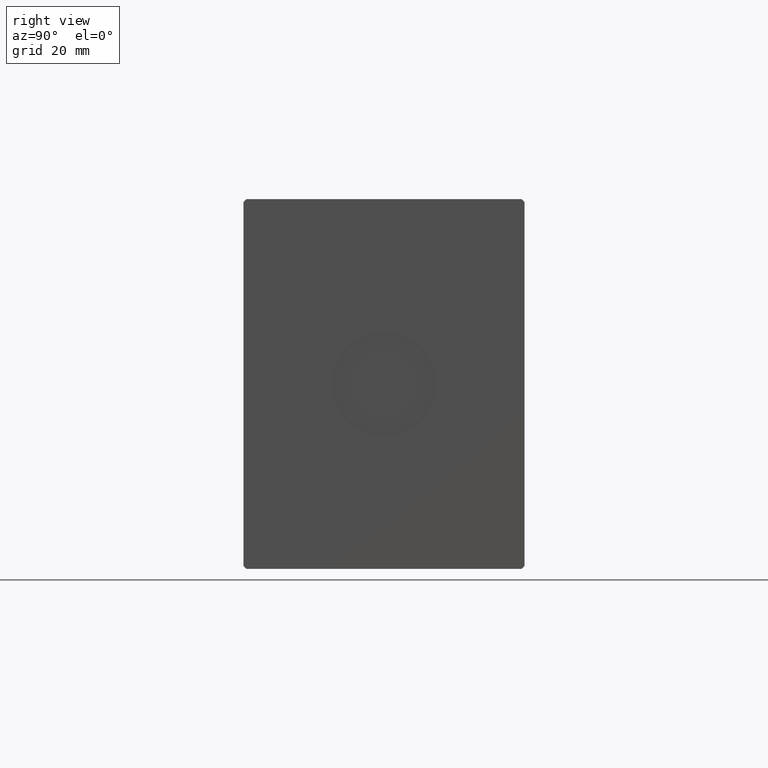
[diagram: clean part render]
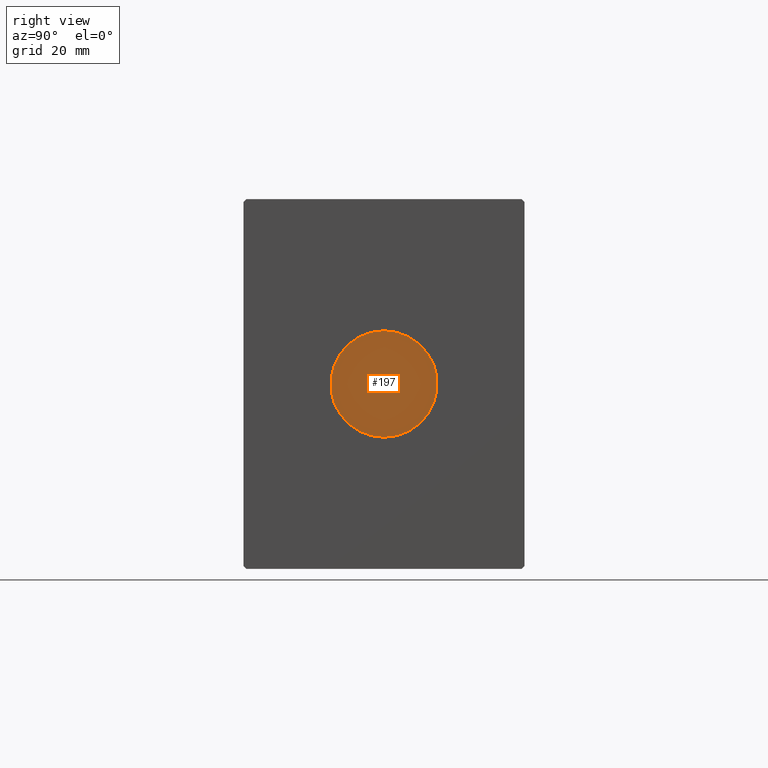
[diagram: same view with one face highlighted and labeled with its STEP entity id]
A machine part, right view. The second image highlights one B-rep face of the part: STEP entity #197.
In plain terms, the highlighted planar face has unit normal (1, 0, 0).
Its self-contained STEP definition (entity closure, byte-faithful):
#197 = ADVANCED_FACE ( 'NONE', ( #30117 ), #29700, .T. ) ;
#373 = CARTESIAN_POINT ( 'NONE',  ( 190.8000000000000114, 0.000000000000000000, 0.000000000000000000 ) ) ;
#1000 = DIRECTION ( 'NONE',  ( 0.000000000000000000, 0.000000000000000000, -1.000000000000000000 ) ) ;
#1393 = CARTESIAN_POINT ( 'NONE',  ( 190.8000000000000114, 0.000000000000000000, -18.00000000000000000 ) ) ;
#4848 = DIRECTION ( 'NONE',  ( 1.000000000000000000, 0.000000000000000000, 0.000000000000000000 ) ) ;
#7205 = EDGE_LOOP ( 'NONE', ( #26087, #31900 ) ) ;
#8422 = CIRCLE ( 'NONE', #21326, 18.00000000000000000 ) ;
#8554 = AXIS2_PLACEMENT_3D ( 'NONE', #373, #10359, #1000 ) ;
#10359 = DIRECTION ( 'NONE',  ( 1.000000000000000000, 0.000000000000000000, 0.000000000000000000 ) ) ;
#11366 = DIRECTION ( 'NONE',  ( 1.000000000000000000, 0.000000000000000000, 0.000000000000000000 ) ) ;
#17505 = EDGE_CURVE ( 'NONE', #36539, #31013, #31102, .T. ) ;
#21326 = AXIS2_PLACEMENT_3D ( 'NONE', #24405, #4848, #33965 ) ;
#23652 = AXIS2_PLACEMENT_3D ( 'NONE', #24121, #11366, #27503 ) ;
#24121 = CARTESIAN_POINT ( 'NONE',  ( 190.8000000000000114, 0.000000000000000000, 0.000000000000000000 ) ) ;
#24405 = CARTESIAN_POINT ( 'NONE',  ( 190.8000000000000114, 0.000000000000000000, 0.000000000000000000 ) ) ;
#24960 = CARTESIAN_POINT ( 'NONE',  ( 190.8000000000000114, 2.204364238465235428E-15, 18.00000000000000000 ) ) ;
#26087 = ORIENTED_EDGE ( 'NONE', *, *, #17505, .T. ) ;
#27503 = DIRECTION ( 'NONE',  ( 0.000000000000000000, 0.000000000000000000, -1.000000000000000000 ) ) ;
#29700 = PLANE ( 'NONE',  #8554 ) ;
#30117 = FACE_OUTER_BOUND ( 'NONE', #7205, .T. ) ;
#31013 = VERTEX_POINT ( 'NONE', #24960 ) ;
#31102 = CIRCLE ( 'NONE', #23652, 18.00000000000000000 ) ;
#31900 = ORIENTED_EDGE ( 'NONE', *, *, #41930, .T. ) ;
#33965 = DIRECTION ( 'NONE',  ( 0.000000000000000000, 0.000000000000000000, -1.000000000000000000 ) ) ;
#36539 = VERTEX_POINT ( 'NONE', #1393 ) ;
#41930 = EDGE_CURVE ( 'NONE', #31013, #36539, #8422, .T. ) ;